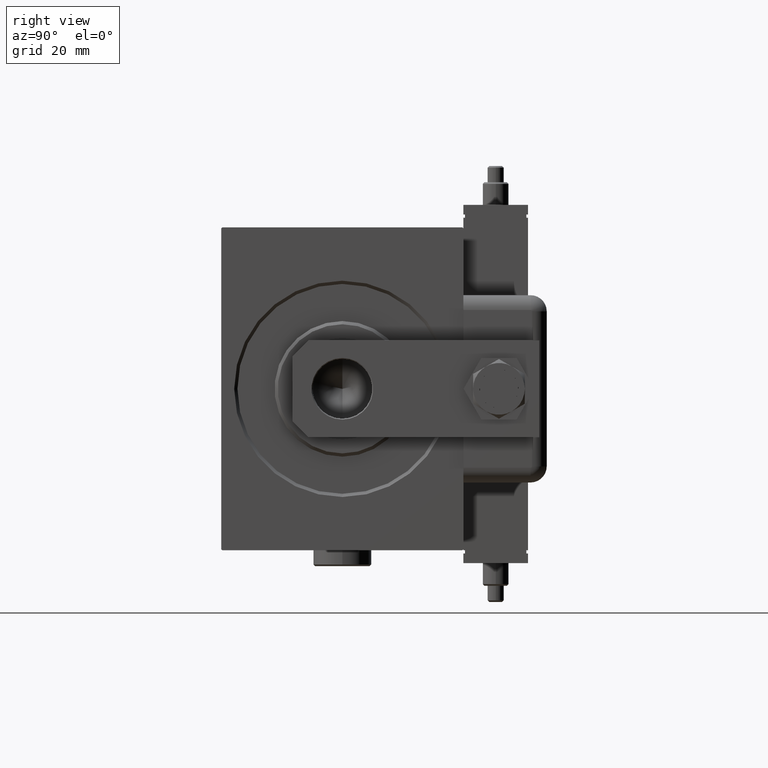
[diagram: clean part render]
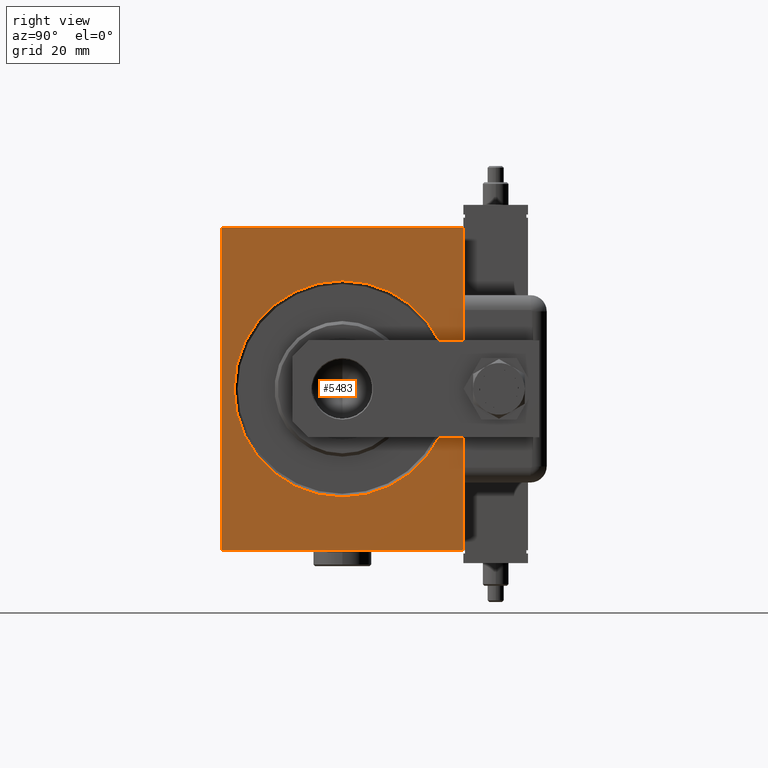
[diagram: same view with one face highlighted and labeled with its STEP entity id]
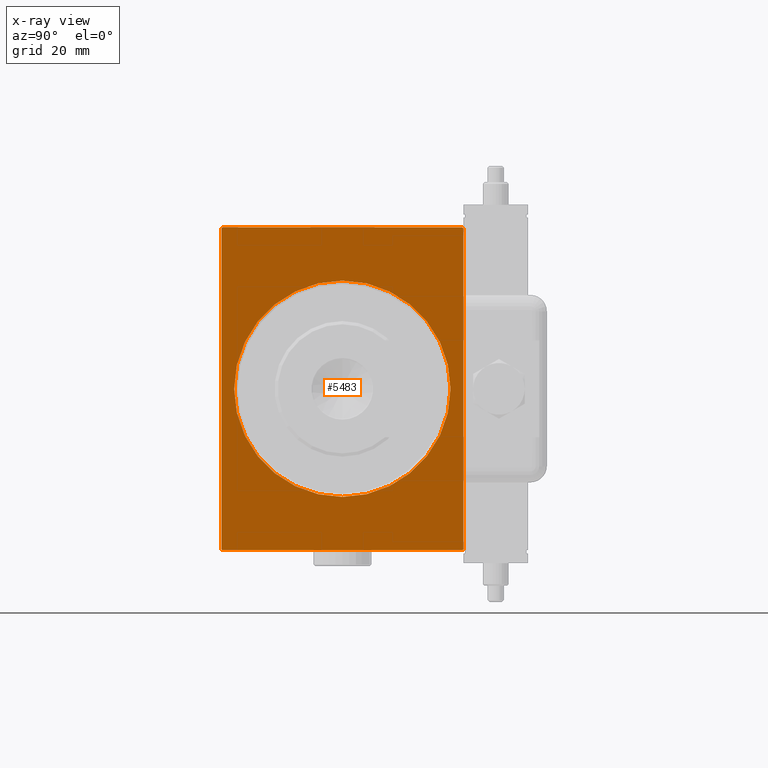
[diagram: x-ray of the same camera — body ghosted, the highlighted face saturated]
A machine part, right view. The second image highlights one B-rep face of the part: STEP entity #5483.
The next image is the same camera in x-ray: the body ghosted, the highlighted face saturated — about 0% of this face is hidden behind the body in this view.
In plain terms, the highlighted planar face has unit normal (-1, 0, 0).
Its self-contained STEP definition (entity closure, byte-faithful):
#315 = LINE ( 'NONE', #33826, #30084 ) ;
#440 = VECTOR ( 'NONE', #25893, 1000.000000000000000 ) ;
#1096 = ORIENTED_EDGE ( 'NONE', *, *, #51358, .T. ) ;
#1661 = VECTOR ( 'NONE', #25032, 1000.000000000000000 ) ;
#1833 = DIRECTION ( 'NONE',  ( -0.000000000000000000, -0.7071067811865474617, 0.7071067811865474617 ) ) ;
#2281 = ORIENTED_EDGE ( 'NONE', *, *, #58818, .F. ) ;
#2405 = VECTOR ( 'NONE', #37206, 1000.000000000000000 ) ;
#3357 = CIRCLE ( 'NONE', #38074, 33.49999999999998579 ) ;
#3966 = ORIENTED_EDGE ( 'NONE', *, *, #57556, .T. ) ;
#5483 = ADVANCED_FACE ( 'NONE', ( #15199, #57113 ), #57417, .F. ) ;
#5807 = CARTESIAN_POINT ( 'NONE',  ( 0.000000000000000000, -37.50000000000000000, 50.00000000000000000 ) ) ;
#5815 = CARTESIAN_POINT ( 'NONE',  ( 0.000000000000000000, 37.19999999999998153, 50.00000000000001421 ) ) ;
#6128 = DIRECTION ( 'NONE',  ( 0.000000000000000000, 0.000000000000000000, -1.000000000000000000 ) ) ;
#8883 = CARTESIAN_POINT ( 'NONE',  ( 0.000000000000000000, 0.000000000000000000, 33.49999999999998579 ) ) ;
#11375 = DIRECTION ( 'NONE',  ( 1.000000000000000000, 0.000000000000000000, 0.000000000000000000 ) ) ;
#11701 = DIRECTION ( 'NONE',  ( 1.000000000000000000, 0.000000000000000000, 0.000000000000000000 ) ) ;
#12094 = VERTEX_POINT ( 'NONE', #56046 ) ;
#12572 = VECTOR ( 'NONE', #1833, 1000.000000000000114 ) ;
#12640 = ORIENTED_EDGE ( 'NONE', *, *, #16397, .T. ) ;
#13227 = EDGE_CURVE ( 'NONE', #37301, #15230, #34671, .T. ) ;
#13573 = LINE ( 'NONE', #23786, #30614 ) ;
#14245 = VERTEX_POINT ( 'NONE', #5815 ) ;
#14897 = DIRECTION ( 'NONE',  ( 0.000000000000000000, 0.000000000000000000, -1.000000000000000000 ) ) ;
#15199 = FACE_BOUND ( 'NONE', #47285, .T. ) ;
#15230 = VERTEX_POINT ( 'NONE', #53246 ) ;
#16397 = EDGE_CURVE ( 'NONE', #30030, #53081, #3357, .T. ) ;
#17224 = CARTESIAN_POINT ( 'NONE',  ( 0.000000000000000000, 37.50000000000000711, -49.70000000000000284 ) ) ;
#17689 = CARTESIAN_POINT ( 'NONE',  ( 0.000000000000000000, 4.102566777143632196E-15, -33.49999999999998579 ) ) ;
#18243 = CARTESIAN_POINT ( 'NONE',  ( 0.000000000000000000, 37.50000000000000711, -50.00000000000000711 ) ) ;
#18653 = CARTESIAN_POINT ( 'NONE',  ( 0.000000000000000000, 37.19999999999998863, -50.00000000000000711 ) ) ;
#18990 = DIRECTION ( 'NONE',  ( -0.000000000000000000, 0.7071067811865556774, 0.7071067811865392461 ) ) ;
#19165 = LINE ( 'NONE', #18243, #2405 ) ;
#20749 = CARTESIAN_POINT ( 'NONE',  ( 0.000000000000000000, -37.19999999999997442, -50.00000000000001421 ) ) ;
#21183 = AXIS2_PLACEMENT_3D ( 'NONE', #26258, #11375, #21283 ) ;
#21208 = ORIENTED_EDGE ( 'NONE', *, *, #13227, .F. ) ;
#21283 = DIRECTION ( 'NONE',  ( 0.000000000000000000, 0.000000000000000000, -1.000000000000000000 ) ) ;
#22731 = VERTEX_POINT ( 'NONE', #38273 ) ;
#23786 = CARTESIAN_POINT ( 'NONE',  ( 0.000000000000000000, 37.19999999999998153, 50.00000000000001421 ) ) ;
#23876 = DIRECTION ( 'NONE',  ( 0.000000000000000000, -1.000000000000000000, -1.850371707708594563E-16 ) ) ;
#25032 = DIRECTION ( 'NONE',  ( 0.000000000000000000, 0.000000000000000000, -1.000000000000000000 ) ) ;
#25435 = DIRECTION ( 'NONE',  ( 1.000000000000000000, 0.000000000000000000, 0.000000000000000000 ) ) ;
#25893 = DIRECTION ( 'NONE',  ( 0.000000000000000000, 1.000000000000000000, 9.251858538542970348E-17 ) ) ;
#26258 = CARTESIAN_POINT ( 'NONE',  ( 0.000000000000000000, 0.000000000000000000, 0.000000000000000000 ) ) ;
#28305 = CARTESIAN_POINT ( 'NONE',  ( 0.000000000000000000, -37.50000000000000000, 49.69999999999998153 ) ) ;
#30030 = VERTEX_POINT ( 'NONE', #17689 ) ;
#30084 = VECTOR ( 'NONE', #23876, 1000.000000000000000 ) ;
#30225 = EDGE_CURVE ( 'NONE', #54763, #37052, #39393, .T. ) ;
#30614 = VECTOR ( 'NONE', #37482, 1000.000000000000114 ) ;
#31028 = EDGE_CURVE ( 'NONE', #14245, #12094, #315, .T. ) ;
#31842 = ORIENTED_EDGE ( 'NONE', *, *, #45418, .T. ) ;
#33826 = CARTESIAN_POINT ( 'NONE',  ( 0.000000000000000000, 37.49999999999999289, 50.00000000000001421 ) ) ;
#34671 = LINE ( 'NONE', #5807, #1661 ) ;
#36990 = VERTEX_POINT ( 'NONE', #59940 ) ;
#37052 = VERTEX_POINT ( 'NONE', #18653 ) ;
#37206 = DIRECTION ( 'NONE',  ( 0.000000000000000000, -1.387778780781445182E-16, 1.000000000000000000 ) ) ;
#37301 = VERTEX_POINT ( 'NONE', #45904 ) ;
#37482 = DIRECTION ( 'NONE',  ( -0.000000000000000000, 0.7071067811865392461, -0.7071067811865556774 ) ) ;
#38074 = AXIS2_PLACEMENT_3D ( 'NONE', #44598, #11701, #6128 ) ;
#38273 = CARTESIAN_POINT ( 'NONE',  ( 0.000000000000000000, -37.19999999999997442, -50.00000000000001421 ) ) ;
#39393 = LINE ( 'NONE', #17224, #48929 ) ;
#39590 = EDGE_CURVE ( 'NONE', #22731, #15230, #52455, .T. ) ;
#40774 = LINE ( 'NONE', #59384, #440 ) ;
#41356 = ORIENTED_EDGE ( 'NONE', *, *, #58839, .F. ) ;
#41944 = ORIENTED_EDGE ( 'NONE', *, *, #30225, .T. ) ;
#42921 = VECTOR ( 'NONE', #18990, 1000.000000000000114 ) ;
#44598 = CARTESIAN_POINT ( 'NONE',  ( 0.000000000000000000, 0.000000000000000000, 0.000000000000000000 ) ) ;
#45418 = EDGE_CURVE ( 'NONE', #14245, #36990, #13573, .T. ) ;
#45702 = ORIENTED_EDGE ( 'NONE', *, *, #39590, .T. ) ;
#45904 = CARTESIAN_POINT ( 'NONE',  ( 0.000000000000000000, -37.50000000000000000, 49.69999999999998153 ) ) ;
#47285 = EDGE_LOOP ( 'NONE', ( #3966, #12640 ) ) ;
#48929 = VECTOR ( 'NONE', #55410, 1000.000000000000114 ) ;
#49333 = AXIS2_PLACEMENT_3D ( 'NONE', #58020, #25435, #14897 ) ;
#51358 = EDGE_CURVE ( 'NONE', #37301, #12094, #56552, .T. ) ;
#51906 = CIRCLE ( 'NONE', #21183, 33.49999999999998579 ) ;
#52109 = ORIENTED_EDGE ( 'NONE', *, *, #31028, .F. ) ;
#52455 = LINE ( 'NONE', #20749, #12572 ) ;
#53081 = VERTEX_POINT ( 'NONE', #8883 ) ;
#53246 = CARTESIAN_POINT ( 'NONE',  ( 0.000000000000000000, -37.50000000000000000, -49.69999999999999574 ) ) ;
#54763 = VERTEX_POINT ( 'NONE', #59522 ) ;
#55410 = DIRECTION ( 'NONE',  ( 0.000000000000000000, -0.7071067811865556774, -0.7071067811865392461 ) ) ;
#56046 = CARTESIAN_POINT ( 'NONE',  ( 0.000000000000000000, -37.19999999999996732, 50.00000000000000000 ) ) ;
#56552 = LINE ( 'NONE', #28305, #42921 ) ;
#57113 = FACE_OUTER_BOUND ( 'NONE', #59754, .T. ) ;
#57417 = PLANE ( 'NONE',  #49333 ) ;
#57556 = EDGE_CURVE ( 'NONE', #53081, #30030, #51906, .T. ) ;
#58020 = CARTESIAN_POINT ( 'NONE',  ( 0.000000000000000000, 0.000000000000000000, 0.000000000000000000 ) ) ;
#58818 = EDGE_CURVE ( 'NONE', #54763, #36990, #19165, .T. ) ;
#58839 = EDGE_CURVE ( 'NONE', #22731, #37052, #40774, .T. ) ;
#59384 = CARTESIAN_POINT ( 'NONE',  ( 0.000000000000000000, -37.50000000000000000, -50.00000000000001421 ) ) ;
#59522 = CARTESIAN_POINT ( 'NONE',  ( 0.000000000000000000, 37.50000000000000711, -49.70000000000000284 ) ) ;
#59754 = EDGE_LOOP ( 'NONE', ( #52109, #31842, #2281, #41944, #41356, #45702, #21208, #1096 ) ) ;
#59940 = CARTESIAN_POINT ( 'NONE',  ( 0.000000000000000000, 37.49999999999999289, 49.70000000000000284 ) ) ;